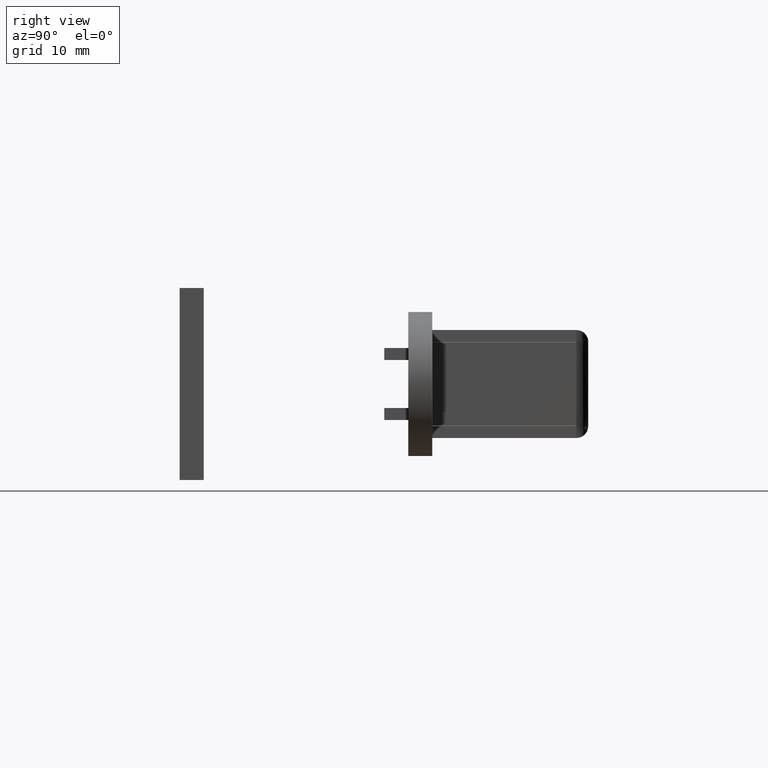
[diagram: clean part render]
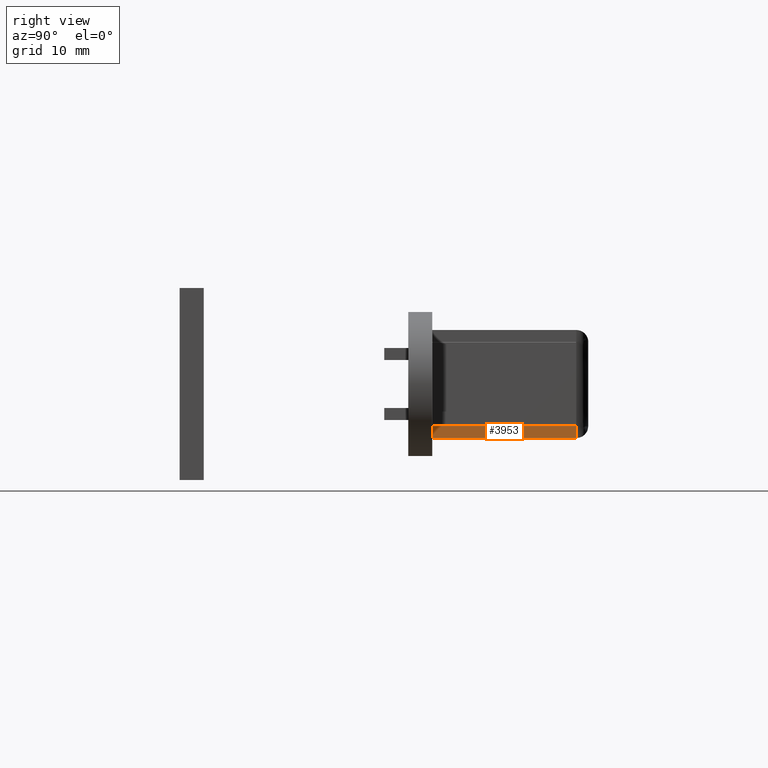
[diagram: same view with one face highlighted and labeled with its STEP entity id]
A machine part, right view. The second image highlights one B-rep face of the part: STEP entity #3953.
In plain terms, the highlighted face is a freeform B-spline surface patch.
Its self-contained STEP definition (entity closure, byte-faithful):
#3240=CARTESIAN_POINT('',(13.499995999999999,-1.0,-4.500000000000000));
#3241=VERTEX_POINT('',#3240);
#3334=CARTESIAN_POINT('',(13.499995999999960,-1.0,-3.500000000000000));
#3335=VERTEX_POINT('',#3334);
#3341=CARTESIAN_POINT('',(13.499995999999999,-1.0,-4.500000000000000));
#3342=CARTESIAN_POINT('',(13.499995999999960,-1.0,-3.500000000000000));
#3343=QUASI_UNIFORM_CURVE('',1,(#3341,#3342),.UNSPECIFIED.,.F.,.U.);
#3344=EDGE_CURVE('',#3241,#3335,#3343,.T.);
#3636=CARTESIAN_POINT('',(13.499995999999999,-13.0,-3.500000000000000));
#3637=VERTEX_POINT('',#3636);
#3643=CARTESIAN_POINT('',(13.499995999999960,-1.0,-3.500000000000000));
#3644=CARTESIAN_POINT('',(13.499995999999999,-13.0,-3.500000000000000));
#3645=QUASI_UNIFORM_CURVE('',1,(#3643,#3644),.UNSPECIFIED.,.F.,.U.);
#3646=EDGE_CURVE('',#3335,#3637,#3645,.T.);
#3702=CARTESIAN_POINT('',(13.499995999999960,-13.0,-4.500000000000000));
#3703=VERTEX_POINT('',#3702);
#3704=CARTESIAN_POINT('',(13.499995999999999,-1.0,-4.500000000000000));
#3705=CARTESIAN_POINT('',(13.499995999999960,-13.0,-4.500000000000000));
#3706=QUASI_UNIFORM_CURVE('',1,(#3704,#3705),.UNSPECIFIED.,.F.,.U.);
#3707=EDGE_CURVE('',#3241,#3703,#3706,.T.);
#3899=CARTESIAN_POINT('',(13.499995999999960,-13.0,-4.500000000000000));
#3900=CARTESIAN_POINT('',(13.499995999999999,-13.0,-3.500000000000000));
#3901=QUASI_UNIFORM_CURVE('',1,(#3899,#3900),.UNSPECIFIED.,.F.,.U.);
#3902=EDGE_CURVE('',#3703,#3637,#3901,.T.);
#3942=CARTESIAN_POINT('',(13.499995999999999,-13.599399976741671,-4.549949998061805));
#3943=CARTESIAN_POINT('',(13.499995999999999,-0.400599701393247,-4.549949998061805));
#3944=CARTESIAN_POINT('',(13.499995999999999,-13.599399976741671,-3.450049975116104));
#3945=CARTESIAN_POINT('',(13.499995999999999,-0.400599701393247,-3.450049975116104));
#3946=B_SPLINE_SURFACE_WITH_KNOTS('',1,1,((#3942,#3944),(#3943,#3945)),.UNSPECIFIED.,.F.,.F.,.U.,(2,2),(2,2),(0.0,13.198800275348431),(0.041708334948495,0.958291687403247),.UNSPECIFIED.);
#3947=ORIENTED_EDGE('',*,*,#3707,.F.);
#3948=ORIENTED_EDGE('',*,*,#3344,.T.);
#3949=ORIENTED_EDGE('',*,*,#3646,.T.);
#3950=ORIENTED_EDGE('',*,*,#3902,.F.);
#3951=EDGE_LOOP('',(#3947,#3948,#3949,#3950));
#3952=FACE_OUTER_BOUND('',#3951,.T.);
#3953=ADVANCED_FACE('',(#3952),#3946,.T.);